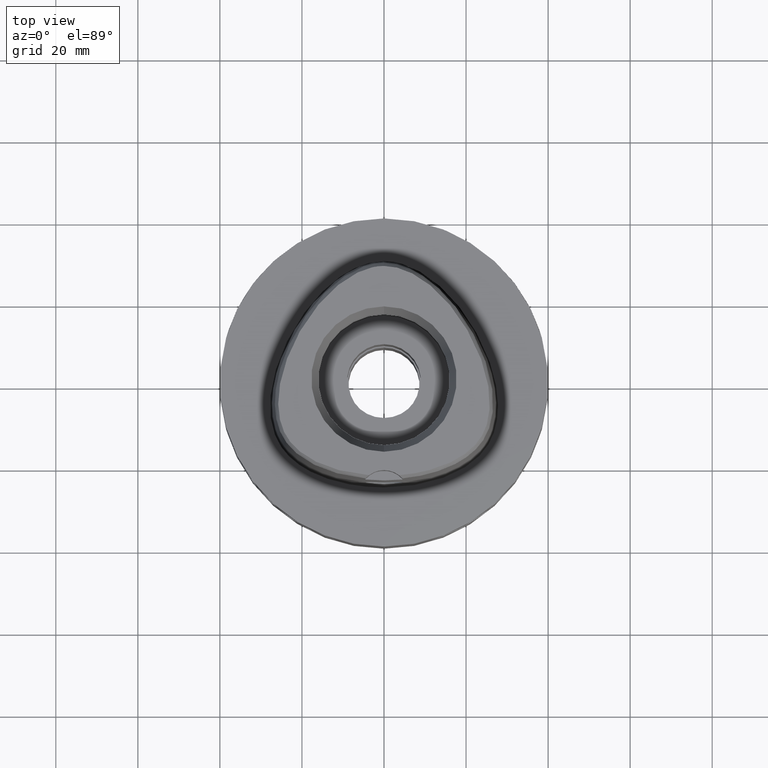
[diagram: clean part render]
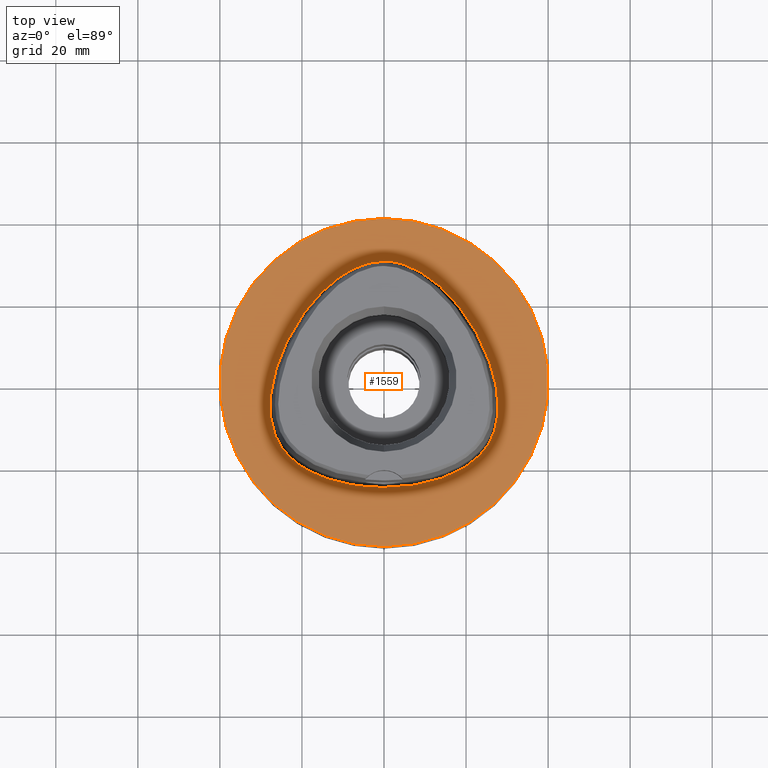
[diagram: same view with one face highlighted and labeled with its STEP entity id]
A machine part, top view. The second image highlights one B-rep face of the part: STEP entity #1559.
In plain terms, the highlighted planar face has unit normal (0, 0, -1).
Its self-contained STEP definition (entity closure, byte-faithful):
#56 = CARTESIAN_POINT ( 'NONE',  ( 4.354908547475000121E-11, 29.57499999998999840, 1.090979158864999866E-13 ) ) ;
#85 = CARTESIAN_POINT ( 'NONE',  ( -17.75297947105729790, 19.52218746656008719, 2.094819869652431166E-06 ) ) ;
#226 = ORIENTED_EDGE ( 'NONE', *, *, #4611, .F. ) ;
#252 = CARTESIAN_POINT ( 'NONE',  ( -9.304563379213405483, 26.79191401767740999, 2.094819869652431166E-06 ) ) ;
#334 = DIRECTION ( 'NONE',  ( 0.0000000000000000000, 0.0000000000000000000, -1.000000000000000000 ) ) ;
#371 = CARTESIAN_POINT ( 'NONE',  ( 22.33885463294038232, 12.89734373572265724, 1.137765652905239205E-06 ) ) ;
#558 = CARTESIAN_POINT ( 'NONE',  ( 4.354908547475000121E-11, 29.57499999998999840, 1.090979158864999866E-13 ) ) ;
#582 = CARTESIAN_POINT ( 'NONE',  ( -15.29776364378016673, -22.96525385735406388, 2.094819869652431166E-06 ) ) ;
#748 = EDGE_CURVE ( 'NONE', #2473, #4379, #2540, .T. ) ;
#762 = CARTESIAN_POINT ( 'NONE',  ( 0.0000000000000000000, 1.273020347714000000E-14, 1.065814103639999922E-14 ) ) ;
#802 = CARTESIAN_POINT ( 'NONE',  ( 27.68378751008365768, -8.751933590160039245, 1.137765652905239205E-06 ) ) ;
#853 = CARTESIAN_POINT ( 'NONE',  ( 26.77222811516928047, 1.900468742689392920, 1.137765652905239205E-06 ) ) ;
#901 = CARTESIAN_POINT ( 'NONE',  ( -25.20914245119653074, 6.827421855213088087, 2.094819869652431166E-06 ) ) ;
#1156 = CARTESIAN_POINT ( 'NONE',  ( 9.304563391730813038, 26.79191403815369199, 1.137765652905239205E-06 ) ) ;
#1235 = CARTESIAN_POINT ( 'NONE',  ( 27.85475986892180700, -5.337968750715377908, 1.137765652905239205E-06 ) ) ;
#1260 = CARTESIAN_POINT ( 'NONE',  ( -26.77222809200315012, 1.900468736539229209, 2.094819869652431166E-06 ) ) ;
#1311 = FACE_OUTER_BOUND ( 'NONE', #1690, .T. ) ;
#1330 = ORIENTED_EDGE ( 'NONE', *, *, #748, .F. ) ;
#1341 = CARTESIAN_POINT ( 'NONE',  ( -6.691850456626842636, -25.24546869795837267, 2.094819869652431166E-06 ) ) ;
#1543 = CARTESIAN_POINT ( 'NONE',  ( 25.20914247343074521, 6.827421864252392503, 1.137765652905239205E-06 ) ) ;
#1559 = ADVANCED_FACE ( 'NONE', ( #1311, #4059 ), #2862, .F. ) ;
#1690 = EDGE_LOOP ( 'NONE', ( #226, #4785 ) ) ;
#1699 = CARTESIAN_POINT ( 'NONE',  ( -27.53737506671863144, -1.765625007924023215, 2.094819869652431166E-06 ) ) ;
#1747 = DIRECTION ( 'NONE',  ( 0.0000000000000000000, 0.0000000000000000000, -1.000000000000000000 ) ) ;
#1780 = CARTESIAN_POINT ( 'NONE',  ( -1.924424304313000141E-11, -25.57499999999999929, 1.155372094292999947E-13 ) ) ;
#1975 = CARTESIAN_POINT ( 'NONE',  ( 24.77458491197820933, -16.12173826436910673, 1.137765652905239205E-06 ) ) ;
#2004 = DIRECTION ( 'NONE',  ( 0.0000000000000000000, 0.0000000000000000000, -1.000000000000000000 ) ) ;
#2033 = EDGE_LOOP ( 'NONE', ( #1330, #2475 ) ) ;
#2078 = CARTESIAN_POINT ( 'NONE',  ( -24.77458489266242836, -16.12173825018081885, 2.094819869652431166E-06 ) ) ;
#2102 = CARTESIAN_POINT ( 'NONE',  ( -25.63812385315753772, -14.80217770814203782, 2.094819869652431166E-06 ) ) ;
#2130 = CARTESIAN_POINT ( 'NONE',  ( -27.10051712314374228, -11.41106443872967091, 2.094819869652431166E-06 ) ) ;
#2134 = CIRCLE ( 'NONE', #3597, 40.00000000000000000 ) ;
#2350 = CARTESIAN_POINT ( 'NONE',  ( 27.53737509041933507, -1.765625004304363532, 1.137765652905239205E-06 ) ) ;
#2391 = DIRECTION ( 'NONE',  ( 0.0000000000000000000, -1.000000000000000000, 0.0000000000000000000 ) ) ;
#2429 = B_SPLINE_CURVE_WITH_KNOTS ( 'NONE', 3,
 ( #2764, #3544, #2739, #4690, #5043, #4659, #3094, #4349, #1975, #4295, #4322, #3496, #802, #1235, #2350, #853, #1543, #371, #2688, #3447, #1156, #2790, #5020, #3831, #56 ),
 .UNSPECIFIED., .F., .F.,
 ( 4, 1, 1, 1, 1, 1, 1, 1, 1, 1, 1, 1, 1, 1, 1, 1, 1, 1, 1, 1, 1, 1, 4 ),
 ( 0.0000000000000000000, 0.08333333333348000305, 0.1250000000001000033, 0.1666666666668000230, 0.2083333333334000115, 0.2500000000000000000, 0.2916666666666999919, 0.3125000000000000000, 0.3333333333333000081, 0.3541666666666999919, 0.3750000000000000000, 0.4166666666666000163, 0.4583333333332000326, 0.4999999999998999689, 0.5416666666666000163, 0.5833333333331000015, 0.6666666666664999852, 0.7499999999997000177, 0.8333333333329999704, 0.8749999999995999866, 0.9166666666663000340, 0.9583333333329000503, 1.000000000000000000 ),
 .UNSPECIFIED. ) ;
#2430 = CARTESIAN_POINT ( 'NONE',  ( -13.21796077085598853, 24.04386714781985290, 2.094819869652431166E-06 ) ) ;
#2462 = CARTESIAN_POINT ( 'NONE',  ( -22.33885461213397861, 12.89734372370515914, 2.094819869652431166E-06 ) ) ;
#2473 = VERTEX_POINT ( 'NONE', #558 ) ;
#2475 = ORIENTED_EDGE ( 'NONE', *, *, #2860, .F. ) ;
#2489 = CARTESIAN_POINT ( 'NONE',  ( -2.676740182675434454, -25.57499994762766704, 2.094819869652431166E-06 ) ) ;
#2540 = B_SPLINE_CURVE_WITH_KNOTS ( 'NONE', 3,
 ( #3697, #2552, #4106, #3741, #252, #2430, #85, #2462, #901, #1260, #1699, #4096, #3247, #2130, #3197, #2102, #2078, #4789, #3222, #3576, #582, #3687, #1341, #2489, #3608 ),
 .UNSPECIFIED., .F., .F.,
 ( 4, 1, 1, 1, 1, 1, 1, 1, 1, 1, 1, 1, 1, 1, 1, 1, 1, 1, 1, 1, 1, 1, 4 ),
 ( 0.0000000000000000000, 0.04166666666721000056, 0.08333333333384000674, 0.1250000000004999889, 0.1666666666671000052, 0.2500000000004000134, 0.3333333333335999904, 0.4166666666668999985, 0.4583333333335000148, 0.5000000000001999512, 0.5416666666667999674, 0.5833333333333999837, 0.6250000000000000000, 0.6458333333333000637, 0.6666666666667000474, 0.6875000000000000000, 0.7083333333333000637, 0.7499999999999000799, 0.7916666666666000163, 0.8333333333332000326, 0.8749999999998000488, 0.9166666666664999852, 1.000000000000000000 ),
 .UNSPECIFIED. ) ;
#2552 = CARTESIAN_POINT ( 'NONE',  ( -1.049694954250744772, 29.57499994764077300, 2.094819869652431166E-06 ) ) ;
#2608 = AXIS2_PLACEMENT_3D ( 'NONE', #762, #334, #2391 ) ;
#2661 = VERTEX_POINT ( 'NONE', #4193 ) ;
#2688 = CARTESIAN_POINT ( 'NONE',  ( 17.75297948961959449, 19.52218748183531005, 1.137765652905239205E-06 ) ) ;
#2739 = CARTESIAN_POINT ( 'NONE',  ( 6.691850459915713145, -25.24546872174392220, 1.137765652905238994E-06 ) ) ;
#2764 = CARTESIAN_POINT ( 'NONE',  ( -1.924424304313000141E-11, -25.57499999999999929, 1.155372094292999947E-13 ) ) ;
#2790 = CARTESIAN_POINT ( 'NONE',  ( 6.262496933729663873, 28.35083005178260152, 1.137765652905239205E-06 ) ) ;
#2860 = EDGE_CURVE ( 'NONE', #4379, #2473, #2429, .T. ) ;
#2862 = PLANE ( 'NONE',  #3665 ) ;
#3061 = CARTESIAN_POINT ( 'NONE',  ( 0.0000000000000000000, 40.00000000000000000, 1.065814103639999922E-14 ) ) ;
#3094 = CARTESIAN_POINT ( 'NONE',  ( 21.42129057635563782, -19.59889646161694188, 1.137765652905239205E-06 ) ) ;
#3197 = CARTESIAN_POINT ( 'NONE',  ( -26.34912732414720082, -13.39455076017427793, 2.094819869652431166E-06 ) ) ;
#3222 = CARTESIAN_POINT ( 'NONE',  ( -21.42129056182097457, -19.59889644248153218, 2.094819869652431166E-06 ) ) ;
#3228 = CARTESIAN_POINT ( 'NONE',  ( 0.0000000000000000000, 1.273020347714000000E-14, 1.065814103639999922E-14 ) ) ;
#3247 = CARTESIAN_POINT ( 'NONE',  ( -27.68378748623397811, -8.751933587140674931, 2.094819869652431166E-06 ) ) ;
#3447 = CARTESIAN_POINT ( 'NONE',  ( 13.21796078665989960, 24.04386716594249762, 1.137765652905239205E-06 ) ) ;
#3492 = VERTEX_POINT ( 'NONE', #3061 ) ;
#3496 = CARTESIAN_POINT ( 'NONE',  ( 27.10051714624793817, -11.41106444530676356, 1.137765652905239205E-06 ) ) ;
#3544 = CARTESIAN_POINT ( 'NONE',  ( 2.676740183967310394, -25.57499997155843730, 1.137765652905239205E-06 ) ) ;
#3576 = CARTESIAN_POINT ( 'NONE',  ( -18.55019646571943426, -21.45394526636055588, 2.094819869652431166E-06 ) ) ;
#3597 = AXIS2_PLACEMENT_3D ( 'NONE', #3228, #2004, #4768 ) ;
#3608 = CARTESIAN_POINT ( 'NONE',  ( -1.924424304313000141E-11, -25.57499999999999929, 1.155372094292999947E-13 ) ) ;
#3665 = AXIS2_PLACEMENT_3D ( 'NONE', #4426, #1747, #4860 ) ;
#3687 = CARTESIAN_POINT ( 'NONE',  ( -11.74025984106811649, -24.13566401186329102, 2.094819869652431166E-06 ) ) ;
#3697 = CARTESIAN_POINT ( 'NONE',  ( 4.354908547475000121E-11, 29.57499999998999840, 1.090979158864999866E-13 ) ) ;
#3741 = CARTESIAN_POINT ( 'NONE',  ( -6.262496924424714173, 28.35083002961578202, 2.094819869652431166E-06 ) ) ;
#3831 = CARTESIAN_POINT ( 'NONE',  ( 1.049694956043448535, 29.57499997155296967, 1.137765652905239205E-06 ) ) ;
#3994 = CIRCLE ( 'NONE', #2608, 40.00000000000000000 ) ;
#4048 = EDGE_CURVE ( 'NONE', #2661, #3492, #3994, .T. ) ;
#4059 = FACE_BOUND ( 'NONE', #2033, .T. ) ;
#4096 = CARTESIAN_POINT ( 'NONE',  ( -27.85475984492790147, -5.337968751317453631, 2.094819869652431166E-06 ) ) ;
#4106 = CARTESIAN_POINT ( 'NONE',  ( -3.149084863199506756, 29.34015619852094048, 2.094819869652431166E-06 ) ) ;
#4193 = CARTESIAN_POINT ( 'NONE',  ( 0.0000000000000000000, -40.00000000000000000, 1.065814103639999922E-14 ) ) ;
#4295 = CARTESIAN_POINT ( 'NONE',  ( 25.63812387391595138, -14.80217772012314725, 1.137765652905239205E-06 ) ) ;
#4322 = CARTESIAN_POINT ( 'NONE',  ( 26.34912734610190910, -13.39455076980321380, 1.137765652905239205E-06 ) ) ;
#4349 = CARTESIAN_POINT ( 'NONE',  ( 23.43253026698222641, -17.76420408169925125, 1.137765652905239205E-06 ) ) ;
#4379 = VERTEX_POINT ( 'NONE', #1780 ) ;
#4426 = CARTESIAN_POINT ( 'NONE',  ( 0.0000000000000000000, 1.224646799146999965E-14, 0.0000000000000000000 ) ) ;
#4611 = EDGE_CURVE ( 'NONE', #3492, #2661, #2134, .T. ) ;
#4659 = CARTESIAN_POINT ( 'NONE',  ( 18.55019647718501474, -21.45394528744020235, 1.137765652905239205E-06 ) ) ;
#4690 = CARTESIAN_POINT ( 'NONE',  ( 11.74025984732032768, -24.13566403500089663, 1.137765652905239205E-06 ) ) ;
#4768 = DIRECTION ( 'NONE',  ( 0.0000000000000000000, 1.000000000000000000, 0.0000000000000000000 ) ) ;
#4785 = ORIENTED_EDGE ( 'NONE', *, *, #4048, .F. ) ;
#4789 = CARTESIAN_POINT ( 'NONE',  ( -23.43253024973375176, -17.76420406497843274, 2.094819869652431166E-06 ) ) ;
#4860 = DIRECTION ( 'NONE',  ( 0.0000000000000000000, -1.000000000000000000, 0.0000000000000000000 ) ) ;
#5020 = CARTESIAN_POINT ( 'NONE',  ( 3.149084868366645917, 29.34015622204375262, 1.137765652905239205E-06 ) ) ;
#5043 = CARTESIAN_POINT ( 'NONE',  ( 15.29776365249906966, -22.96525387969474252, 1.137765652905239205E-06 ) ) ;